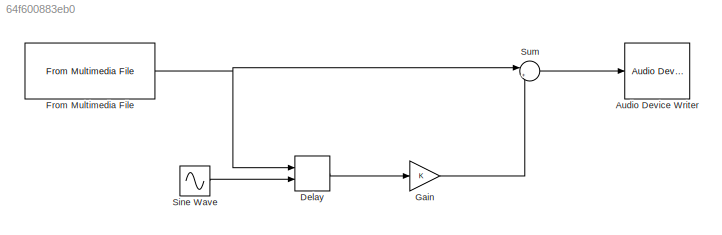
MODEL slx_64f600883eb0
KIND model
CONFIG AbsTol = auto
CONFIG EnableMultiTasking = off
CONFIG FixedStep = auto
CONFIG MaxStep = auto
CONFIG MinStep = auto
CONFIG RelTol = 1e-3
CONFIG SampleTimeConstraint = Unconstrained
CONFIG SolverName = VariableStepAuto
CONFIG StartTime = 0.0
CONFIG StopTime = 10.0
BLOCK [Reference] Audio Device Writer  REF=dspsnks4/Audio Device
Writer
  Ports = [1]
  SourceBlock = dspsnks4/Audio Device\nWriter
  SourceProductBaseCode = DS
  SourceType = Audio Device Writer
BLOCK [Delay] Delay
  DelayLengthSource = Input port
  InputPortMap = u0,p1
  Ports = [2, 1]
BLOCK [Reference] From Multimedia File  REF=dspvision/From Multimedia File
  Ports = [0, 1]
  SourceBlock = dspvision/From Multimedia File
  SourceProductBaseCode = DS,HW,VP
  SourceType = From Multimedia File
BLOCK [Gain] Gain
BLOCK [Sin] Sine Wave
  Frequency = 1.25
  Ports = [0, 1]
  SampleTime = 0
BLOCK [Sum] Sum
  Inputs = |++
  Ports = [2, 1]
LINE Delay:1 -> Gain:1
NET From Multimedia File:1 -> Delay:1, Sum:1
LINE Gain:1 -> Sum:2
LINE Sine Wave:1 -> Delay:2
LINE Sum:1 -> Audio Device Writer:1
note: NET lines group one-source signal fan-out (src -> all destinations, sorted); 1:1 wires keep LINE
